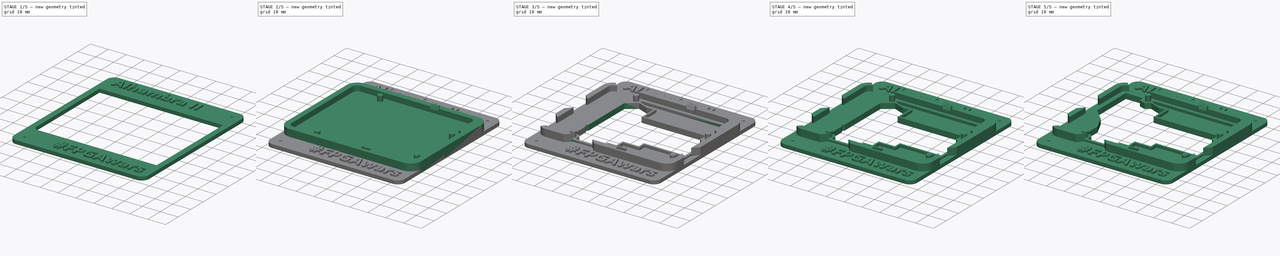
[diagram: build sequence overview — one tinted view per stage of 5, left to right]
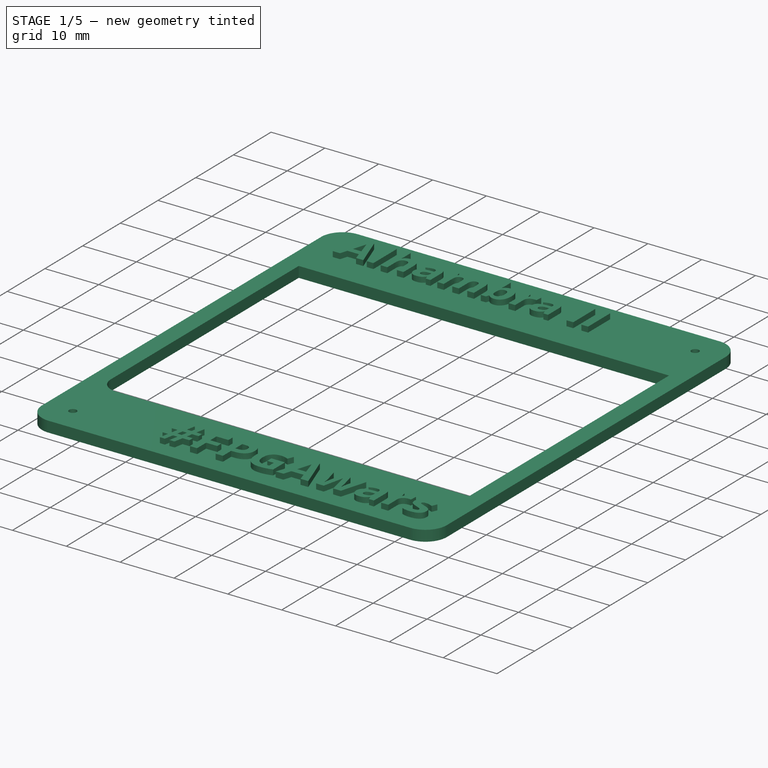
[diagram: stage 1 of 5 — iso view after this stage's code; geometry added in this stage tinted green]
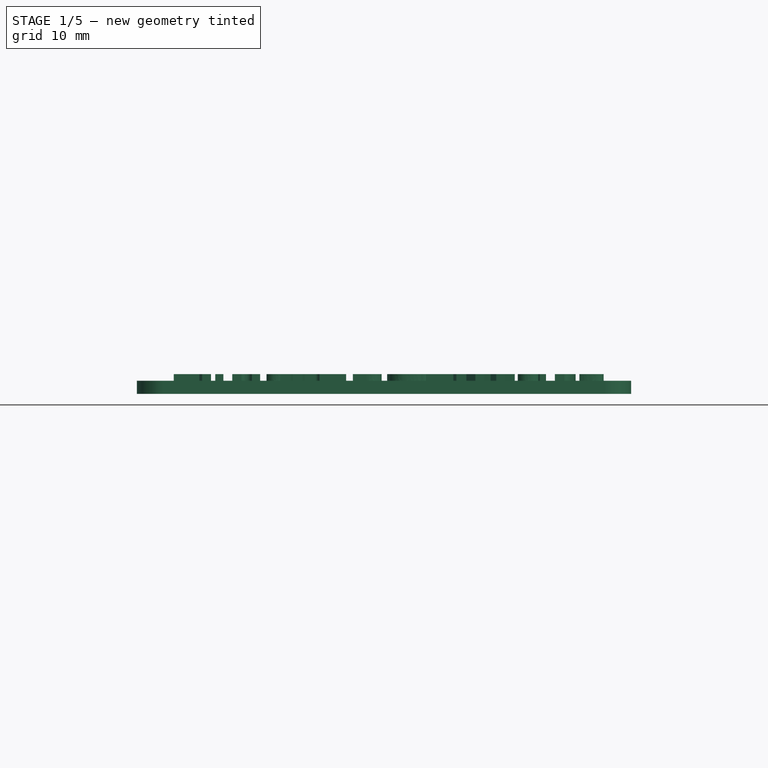
[diagram: stage 1 of 5 — front view after this stage's code; geometry added in this stage tinted green]
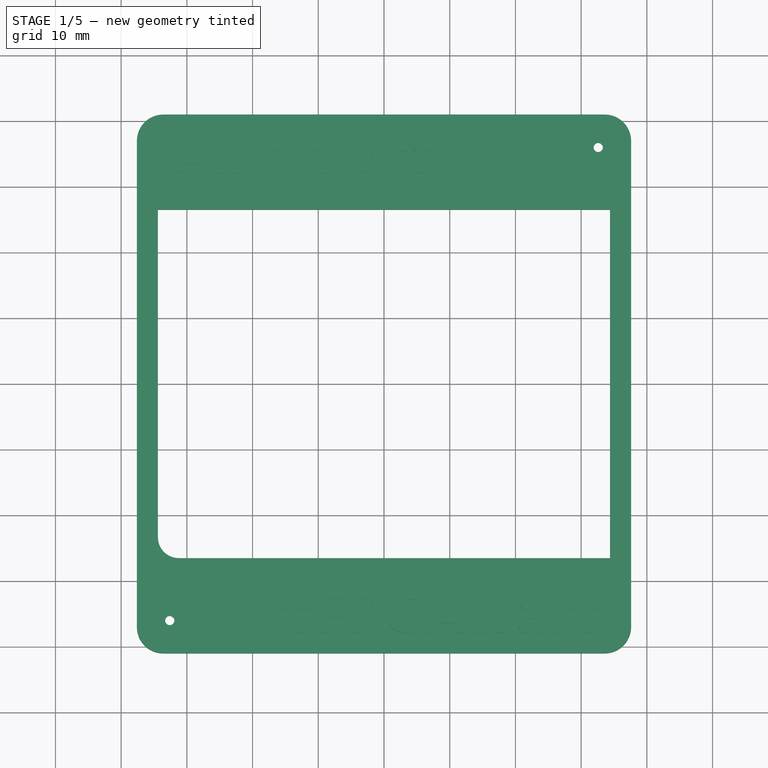
[diagram: stage 1 of 5 — top view after this stage's code; geometry added in this stage tinted green]
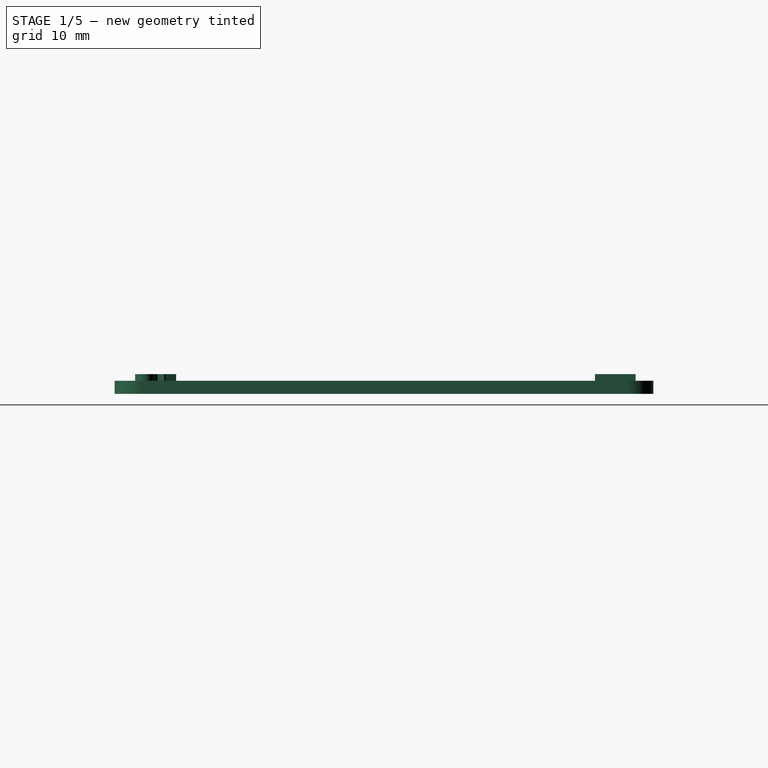
[diagram: stage 1 of 5 — right view after this stage's code; geometry added in this stage tinted green]
FCSTD DOCUMENT  (FreeCAD 0.16R6712 (Git))
Label: Alhambra_II_3D_support
License: All rights reserved
LicenseURL: http://en.wikipedia.org/wiki/All_rights_reserved
objects: Sketcher::SketchObject×12, PartDesign::Pad×6, PartDesign::Pocket×5, Part::Feature×4, Part::Extrusion×4, Part::MultiFuse×4, Part::Part2DObjectPython×2, Part::Cut×1, Part::Mirroring×1
note: 50 computed .brp shape members not serialized (recipe doc carries the construction recipe); baked Part::Feature solids carry a one-line shape summary decoded from their .brp

FEATURE [Part::Part2DObjectPython] ShapeString001  label="FPGAwars-text-string"  # Draft 2D object (typed FeaturePython)
  FontFile = <userpath>/Documents/3_FPGAs/base alhambra/OpenSans/OpenSans-Bold.ttf
  Placement = pos=(-16,-37.8795,-3) rot=(0,0,1;0rad)
  Size = 8
  String = #FPGAwars
  Tracking = 0
FEATURE [Sketcher::SketchObject] Sketch007  label="Icezum-alhambra-text-base-sketch"
  Placement = pos=(0,0,-5) rot=(0,0,1;0rad)
  sketch-geometry (15):
    g0: LineSegment StartX=-33.6 StartY=41 StartZ=0 EndX=33.6 EndY=41 EndZ=0
    g1: LineSegment StartX=37.6 StartY=37 StartZ=0 EndX=37.6 EndY=-37 EndZ=0
    g2: LineSegment StartX=33.6 StartY=-41 StartZ=0 EndX=-33.6 EndY=-41 EndZ=0
    g3: LineSegment StartX=-37.6 StartY=-37 StartZ=0 EndX=-37.6 EndY=37 EndZ=0
    g4: ArcOfCircle CenterX=-33.6 CenterY=37 CenterZ=0 NormalX=0 NormalY=0 NormalZ=1 Radius=4 StartAngle=1.5708 EndAngle=3.14159
    g5: ArcOfCircle CenterX=33.6 CenterY=37 CenterZ=0 NormalX=0 NormalY=0 NormalZ=1 Radius=4 StartAngle=0 EndAngle=1.5708
    g6: ArcOfCircle CenterX=33.6 CenterY=-37 CenterZ=0 NormalX=0 NormalY=0 NormalZ=1 Radius=4 StartAngle=4.71239 EndAngle=6.28319
    g7: ArcOfCircle CenterX=-33.6 CenterY=-37 CenterZ=0 NormalX=0 NormalY=0 NormalZ=1 Radius=4 StartAngle=3.14159 EndAngle=4.71239
    g8: LineSegment StartX=-34.4 StartY=26.5 StartZ=0 EndX=34.4 EndY=26.5 EndZ=0
    g9: LineSegment StartX=34.4 StartY=26.5 StartZ=0 EndX=34.4 EndY=-26.5 EndZ=0
    g10: LineSegment StartX=34.4 StartY=-26.5 StartZ=0 EndX=-31.23 EndY=-26.5 EndZ=0
    g11: LineSegment StartX=-34.4 StartY=-23.33 StartZ=0 EndX=-34.4 EndY=26.5 EndZ=0
    g12: ArcOfCircle CenterX=-31.23 CenterY=-23.33 CenterZ=0 NormalX=0 NormalY=0 NormalZ=1 Radius=3.16996 StartAngle=3.14159 EndAngle=4.71239
    g13: Circle CenterX=-32.6 CenterY=-36 CenterZ=0 NormalX=0 NormalY=0 NormalZ=1 Radius=0.7
    g14: Circle CenterX=32.6 CenterY=36 CenterZ=0 NormalX=0 NormalY=0 NormalZ=1 Radius=0.7
  constraints (37):
    c: Horizontal(g0)
    c: Horizontal(g2)
    c: Vertical(g1)
    c: Vertical(g3)
    c: Tangent(g0,g4) = 1.5708
    c: Tangent(g3,g4) = 1.5708
    c: Tangent(g0,g5) = 1.5708
    c: Tangent(g1,g5) = 1.5708
    c: Tangent(g1,g6) = 1.5708
    c: Tangent(g2,g6) = 1.5708
    c: Tangent(g2,g7) = 1.5708
    c: Tangent(g3,g7) = 1.5708
    c: Equal(g4,g5)
    c: Equal(g5,g6)
    c: Equal(g6,g7)
    c: Radius(g4) = 4
    c: Symmetric(g4,g6,g-1)
    c: DistanceX(g3,g1) = 75.2
    c: DistanceY(g2,g0) = 82
    c: Coincident(g8,g9)
    c: Coincident(g9,g10)
    c: Coincident(g11,g8)
    c: Horizontal(g8)
    c: Horizontal(g10)
    c: Vertical(g9)
    c: Vertical(g11)
    c: Symmetric(g8,g9,g-1)
    c: DistanceY(g8,g3) = 10.5
    c: DistanceX(g3,g8) = 3.2
    c: Tangent(g11,g12) = 1.5708
    c: Tangent(g10,g12) = 1.5708
    c: DistanceY(g2,g13) = 5
    c: DistanceX(g3,g13) = 5
    c: Radius(g13) = 0.7
    c: Radius(g14) = 0.7
    c: DistanceY(g14,g0) = 5
    c: DistanceX(g14,g1) = 5
FEATURE [Part::Extrusion] Extrude001  label="Alhmabra_II-text"
  Base = -> ShapeString
  Dir = (0,0,1)
  Solid = true
FEATURE [Part::Extrusion] Extrude002  label="FPGAwars-text"
  Base = -> ShapeString001
  Dir = (0,0,1)
  Solid = true
FEATURE [Part::Extrusion] Extrude003  label="Base-text"
  Base = -> Sketch007
  Dir = (0,0,2)
  Solid = true
FEATURE [Part::MultiFuse] Fusion002  label="Base-with-text"
  Shapes = -> [Extrude001,Extrude002,Extrude003]
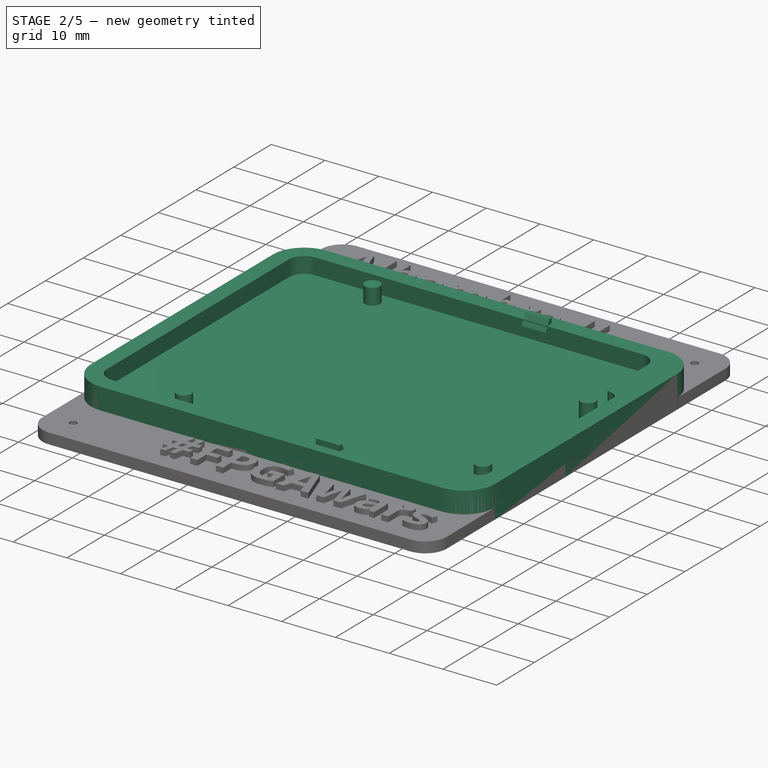
[diagram: stage 2 of 5 — iso view after this stage's code; geometry added in this stage tinted green]
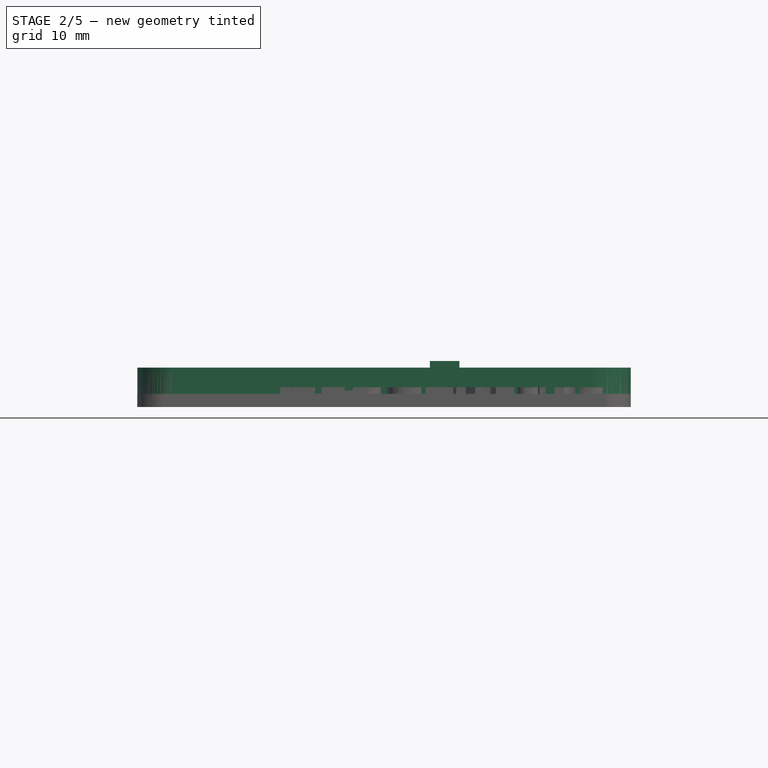
[diagram: stage 2 of 5 — front view after this stage's code; geometry added in this stage tinted green]
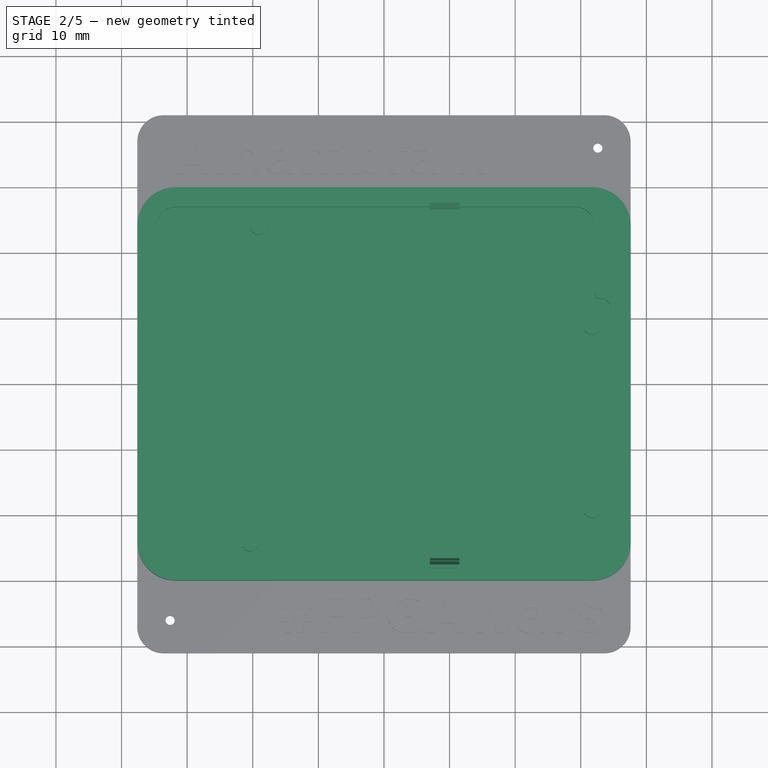
[diagram: stage 2 of 5 — top view after this stage's code; geometry added in this stage tinted green]
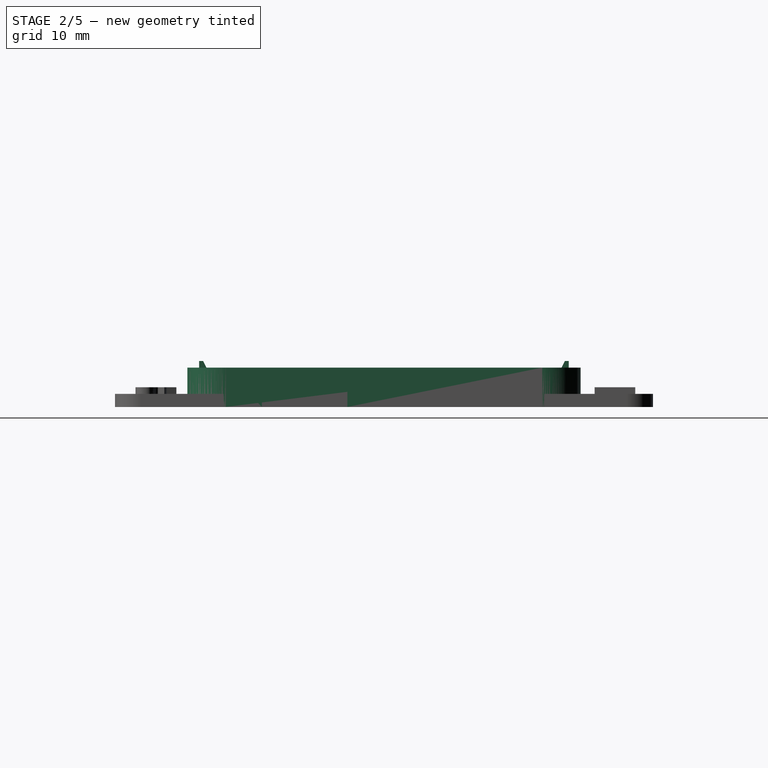
[diagram: stage 2 of 5 — right view after this stage's code; geometry added in this stage tinted green]
FEATURE [Part::Feature] Wire  label="board_contour"
  shape: bbox 68.58 x 53.34 x 2e-07 mm, 0 faces, 0 solids (baked)
FEATURE [Part::Feature] Offset  label="board_contour_offset"
  shape: bbox 69.18 x 53.94 x 2e-07 mm, 0 faces, 0 solids (baked)
FEATURE [Part::Feature] Face
  shape: bbox 69.18 x 53.94 x 2e-07 mm, 1 faces, 0 solids (baked)
FEATURE [Part::Extrusion] Extrude  label="board_base_offset"
  Base = -> Face
  Dir = (0,0,-4)
  Placement = pos=(0,0,2) rot=(0,0,1;0rad)
  Solid = true
FEATURE [Sketcher::SketchObject] Sketch  label="Base-sketch"
  Placement = pos=(0,0,1) rot=(0,0,1;0rad)
  expr: Constraints[26] = 2.84 + 3
  sketch-geometry (23):
    g0: LineSegment StartX=-31.75 StartY=29.97 StartZ=0 EndX=31.77 EndY=29.97 EndZ=0
    g1: LineSegment StartX=37.61 StartY=24.13 StartZ=0 EndX=37.61 EndY=-24.13 EndZ=0
    g2: LineSegment StartX=31.77 StartY=-29.97 StartZ=0 EndX=-31.75 EndY=-29.97 EndZ=0
    g3: LineSegment StartX=-37.59 StartY=-24.13 StartZ=0 EndX=-37.59 EndY=24.13 EndZ=0
    g4: ArcOfCircle CenterX=-31.75 CenterY=24.13 CenterZ=0 NormalX=0 NormalY=0 NormalZ=1 Radius=5.84 StartAngle=1.5708 EndAngle=3.14159
    g5: ArcOfCircle CenterX=31.77 CenterY=-24.13 CenterZ=0 NormalX=0 NormalY=0 NormalZ=1 Radius=5.84 StartAngle=4.71239 EndAngle=6.28319
    g6: ArcOfCircle CenterX=-31.75 CenterY=-24.13 CenterZ=0 NormalX=0 NormalY=0 NormalZ=1 Radius=5.84 StartAngle=3.14159 EndAngle=4.71239
    g7: LineSegment [constr] StartX=-34.59 StartY=24.13 StartZ=0 EndX=-34.59 EndY=-24.13 EndZ=0
    g8: ArcOfCircle [constr] CenterX=-31.75 CenterY=24.13 CenterZ=0 NormalX=0 NormalY=0 NormalZ=1 Radius=2.84 StartAngle=1.5708 EndAngle=3.14159
    g9: LineSegment [constr] StartX=-34.59 StartY=24.13 StartZ=0 EndX=-31.75 EndY=24.13 EndZ=0
    g10: LineSegment [constr] StartX=-31.75 StartY=24.13 StartZ=0 EndX=-31.75 EndY=26.97 EndZ=0
    g11: LineSegment [constr] StartX=-31.75 StartY=-24.13 StartZ=0 EndX=-34.59 EndY=-24.13 EndZ=0
    g12: LineSegment [constr] StartX=34.61 StartY=24.13 StartZ=0 EndX=34.61 EndY=-24.13 EndZ=0
    g13: LineSegment [constr] StartX=-31.75 StartY=26.97 StartZ=0 EndX=31.77 EndY=26.97 EndZ=0
    g14: ArcOfCircle [constr] CenterX=31.77 CenterY=24.13 CenterZ=0 NormalX=0 NormalY=0 NormalZ=1 Radius=2.84 StartAngle=0 EndAngle=1.5708
    g15: ArcOfCircle CenterX=31.77 CenterY=24.13 CenterZ=0 NormalX=0 NormalY=0 NormalZ=1 Radius=5.84 StartAngle=0 EndAngle=1.5708
    g16: LineSegment [constr] StartX=31.77 StartY=24.13 StartZ=0 EndX=34.61 EndY=24.13 EndZ=0
    g17: LineSegment [constr] StartX=31.77 StartY=24.13 StartZ=0 EndX=31.77 EndY=26.97 EndZ=0
    g18: LineSegment [constr] StartX=-31.75 StartY=-24.13 StartZ=0 EndX=-31.75 EndY=-26.97 EndZ=0
    g19: ArcOfCircle [constr] CenterX=-31.75 CenterY=-24.13 CenterZ=0 NormalX=0 NormalY=0 NormalZ=1 Radius=2.84 StartAngle=3.14159 EndAngle=4.71239
    g20: LineSegment [constr] StartX=-31.75 StartY=-26.97 StartZ=0 EndX=31.77 EndY=-26.97 EndZ=0
    g21: LineSegment [constr] StartX=31.77 StartY=-26.97 StartZ=0 EndX=31.77 EndY=-24.13 EndZ=0
    g22: ArcOfCircle [constr] CenterX=31.77 CenterY=-24.13 CenterZ=0 NormalX=0 NormalY=0 NormalZ=1 Radius=2.84 StartAngle=4.71239 EndAngle=6.28319
  constraints (60):
    c: Horizontal(g0)
    c: Horizontal(g2)
    c: Vertical(g1)
    c: Vertical(g3)
    c: Tangent(g0,g4) = 1.5708
    c: Tangent(g3,g4) = 1.5708
    c: Tangent(g1,g5) = 1.5708
    c: Tangent(g2,g5) = 1.5708
    c: Tangent(g2,g6) = 1.5708
    c: Tangent(g3,g6) = 1.5708
    c: DistanceX(g4,g-1) = 31.75  'g'
    c: DistanceY(g-1,g4) = 24.13
    c: Symmetric(g6,g4,g-1)  'Constraint13'
    c: Vertical(g7)
    c: Coincident(g8,g4)
    c: Coincident(g7,g8)
    c: Coincident(g9,g7)
    c: Coincident(g9,g4)
    c: Horizontal(g9)
    c: Radius(g8) = 2.84
    c: Coincident(g10,g4)
    c: Vertical(g10)
    c: Coincident(g8,g10)
    c: Coincident(g11,g6)
    c: Horizontal(g11)
    c: Coincident(g7,g11)
    c: Radius(g4) = 5.84
    c: Vertical(g12)
    c: DistanceX(g7,g12) = 69.2
    c: Horizontal(g13)
    c: Coincident(g13,g8)
    c: Coincident(g14,g13)
    c: Equal(g14,g8)
    c: Coincident(g15,g14)
    c: Coincident(g15,g0)
    c: Coincident(g1,g15)
    c: Coincident(g14,g12)
    c: Coincident(g16,g14)
    c: Coincident(g16,g12)
    c: Horizontal(g16)
    c: PointOnObject(g1,g16)
    c: Coincident(g17,g14)
    c: Coincident(g17,g13)
    c: Vertical(g17)
    c: PointOnObject(g0,g17)
    c: Equal(g15,g5)
    c: PointOnObject(g12,g11)
    c: Coincident(g18,g6)
    c: Vertical(g18)
    c: Coincident(g19,g6)
    c: Coincident(g19,g7)
    c: Coincident(g18,g19)
    c: Coincident(g20,g18)
    c: Horizontal(g20)
    c: Coincident(g21,g20)
    c: Coincident(g21,g5)
    c: Vertical(g21)
    c: Coincident(g22,g5)
    c: Coincident(g22,g20)
    c: Coincident(g22,g12)
FEATURE [PartDesign::Pad] Pad  label="Support_base"
  Length = 6
  Length2 = 100
  Placement = pos=(0,0,1) rot=(0,0,1;0rad)
  Reversed = true
  Sketch = -> Sketch
  Type = 0
FEATURE [Part::Cut] Cut  label="Support-base-2"
  Base = -> Pad
  Tool = -> Extrude
FEATURE [Part::Feature] Pocket004001  label="Final_Without_text001"
  shape: bbox 75.2 x 59.94 x 7 mm, 130 faces (baked)
FEATURE [Part::MultiFuse] Fusion004  label="Final_with_text_Alhambra_II"
  Shapes = -> [Fusion002,Pocket004001]
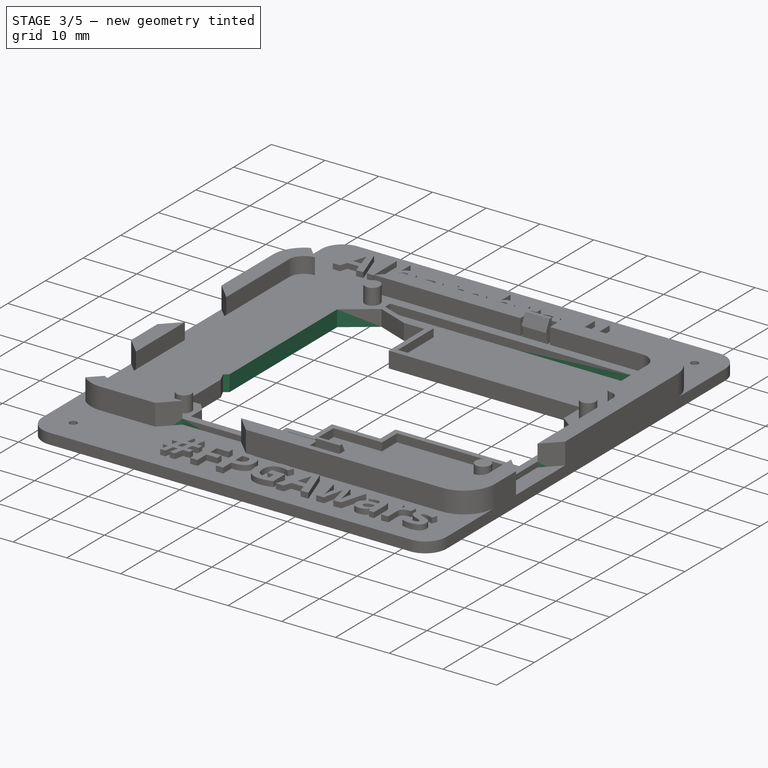
[diagram: stage 3 of 5 — iso view after this stage's code; geometry added in this stage tinted green]
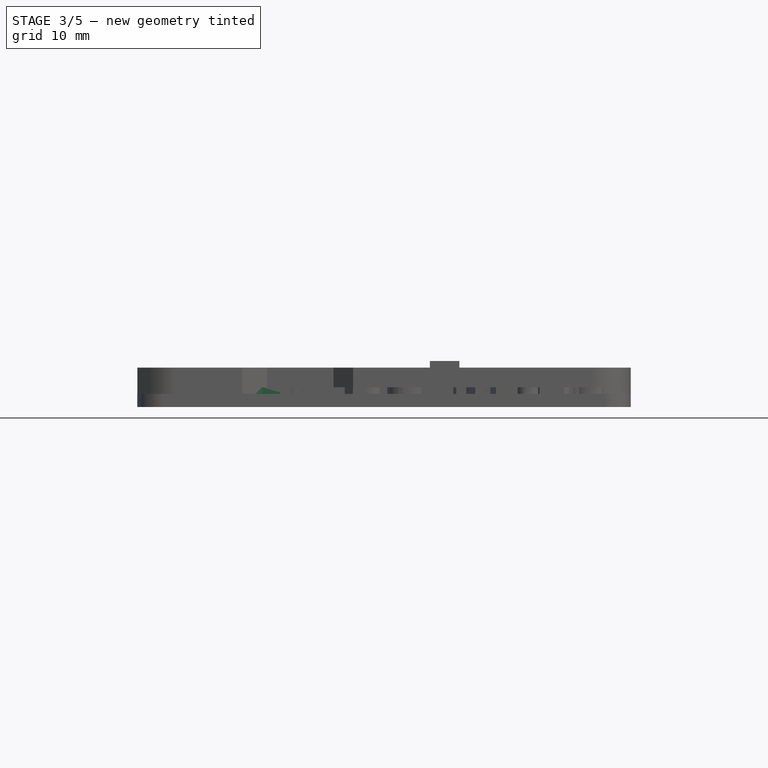
[diagram: stage 3 of 5 — front view after this stage's code; geometry added in this stage tinted green]
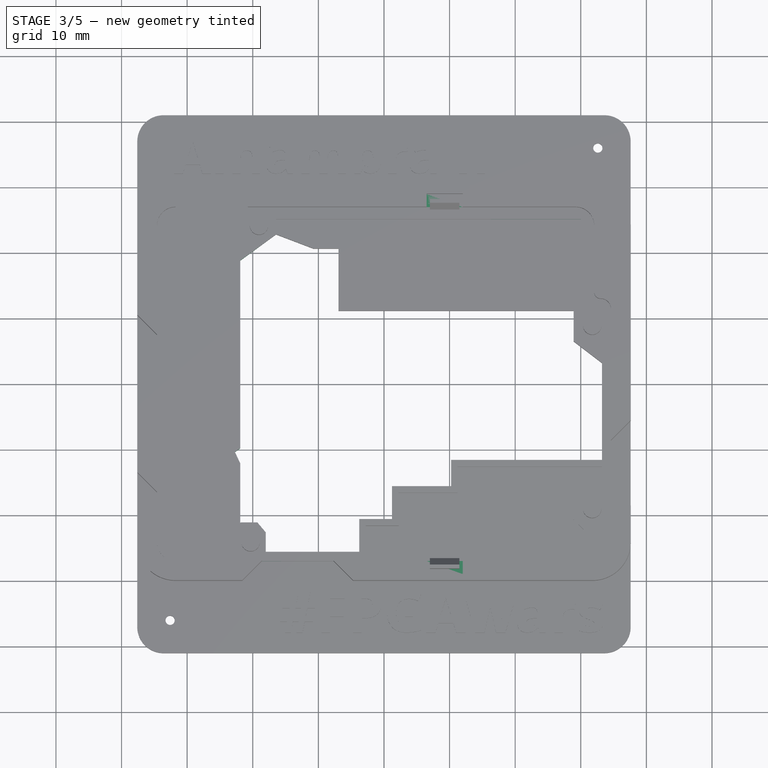
[diagram: stage 3 of 5 — top view after this stage's code; geometry added in this stage tinted green]
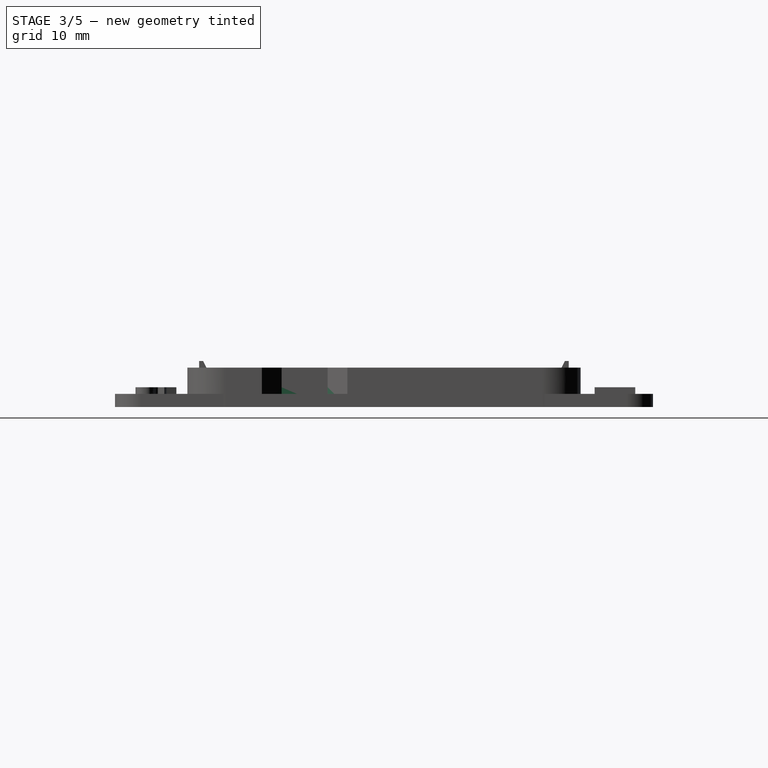
[diagram: stage 3 of 5 — right view after this stage's code; geometry added in this stage tinted green]
FEATURE [Sketcher::SketchObject] Sketch001  label="Bottom-cutout"
  Placement = pos=(0,0,-2) rot=(0,0,1;0rad)
  Support = -> Cut [Face24]
  sketch-geometry (23):
    g0: LineSegment StartX=-16.4489 StartY=25.1687 StartZ=0 EndX=30.0737 EndY=25.1687 EndZ=0
    g1: LineSegment StartX=30.0737 StartY=25.1687 StartZ=0 EndX=30.0737 EndY=13.1477 EndZ=0
    g2: LineSegment StartX=-16.4489 StartY=22.8251 StartZ=0 EndX=-16.4489 EndY=25.1687 EndZ=0
    g3: LineSegment StartX=30.0737 StartY=13.1477 StartZ=0 EndX=28.9006 EndY=12.1902 EndZ=0
    g4: LineSegment StartX=28.9006 StartY=12.1902 StartZ=0 EndX=28.9006 EndY=6.52393 EndZ=0
    g5: LineSegment StartX=33.2295 StartY=3.21963 StartZ=0 EndX=33.2295 EndY=-13.9555 EndZ=0
    g6: LineSegment StartX=33.2295 StartY=-13.9555 StartZ=0 EndX=28.9515 EndY=-18.044 EndZ=0
    g7: LineSegment StartX=28.9515 StartY=-18.044 StartZ=0 EndX=28.9515 EndY=-20.6899 EndZ=0
    g8: LineSegment StartX=28.9515 StartY=-20.6899 StartZ=0 EndX=30.408 EndY=-22.1739 EndZ=0
    g9: LineSegment StartX=30.408 StartY=-22.1739 StartZ=0 EndX=30.408 EndY=-25.5654 EndZ=0
    g10: LineSegment StartX=30.408 StartY=-25.5654 StartZ=0 EndX=-18.0282 EndY=-25.5654 EndZ=0
    g11: LineSegment StartX=-18.0282 StartY=-25.5654 StartZ=0 EndX=-18.0282 EndY=-22.5989 EndZ=0
    g12: LineSegment StartX=-21.9084 StartY=-9.76614 StartZ=0 EndX=-21.9084 EndY=18.8396 EndZ=0
    g13: LineSegment StartX=-21.9084 StartY=18.8396 StartZ=0 EndX=-16.4489 EndY=22.8251 EndZ=0
    g14: LineSegment StartX=28.9006 StartY=6.52393 StartZ=0 EndX=33.2295 EndY=3.21963 EndZ=0
    g15: LineSegment StartX=-18.0282 StartY=-22.5989 StartZ=0 EndX=-19.2968 EndY=-21.0867 EndZ=0
    g16: LineSegment StartX=-19.2968 StartY=-21.0867 StartZ=0 EndX=-21.8189 EndY=-21.0867 EndZ=0
    g17: LineSegment StartX=-21.8189 StartY=-21.0867 StartZ=0 EndX=-23.0035 EndY=-22.3859 EndZ=0
    g18: LineSegment StartX=-23.0035 StartY=-22.3859 StartZ=0 EndX=-23.0035 EndY=-25.4429 EndZ=0
    g19: LineSegment StartX=-23.0035 StartY=-25.4429 StartZ=0 EndX=-28.2004 EndY=-25.4429 EndZ=0
    g20: LineSegment StartX=-28.2004 StartY=-25.4429 StartZ=0 EndX=-31.0297 EndY=-19.8639 EndZ=0
    g21: LineSegment StartX=-31.0297 StartY=-19.8639 StartZ=0 EndX=-31.0297 EndY=-16.3112 EndZ=0
    g22: LineSegment StartX=-31.0297 StartY=-16.3112 StartZ=0 EndX=-21.9084 EndY=-9.76614 EndZ=0
  constraints (37):
    c: Horizontal(g0)
    c: Coincident(g0,g1)
    c: Vertical(g1)
    c: Coincident(g2,g0)
    c: Vertical(g2)
    c: Coincident(g1,g3)
    c: Coincident(g3,g4)
    c: Vertical(g4)
    c: Vertical(g5)
    c: Coincident(g6,g7)
    c: Vertical(g7)
    c: Coincident(g7,g8)
    c: Coincident(g8,g9)
    c: Vertical(g9)
    c: Coincident(g9,g10)
    c: Horizontal(g10)
    c: Coincident(g10,g11)
    c: Vertical(g11)
    c: Vertical(g12)
    c: Coincident(g13,g12)
    c: Coincident(g13,g2)
    c: Coincident(g5,g6)
    c: Coincident(g14,g4)
    c: Coincident(g14,g5)
    c: Coincident(g11,g15)
    c: Coincident(g15,g16)
    c: Horizontal(g16)
    c: Coincident(g16,g17)
    c: Coincident(g17,g18)
    c: Vertical(g18)
    c: Coincident(g18,g19)
    c: Horizontal(g19)
    c: Coincident(g19,g20)
    c: Coincident(g20,g21)
    c: Vertical(g21)
    c: Coincident(g21,g22)
    c: Coincident(g22,g12)
FEATURE [PartDesign::Pocket] Pocket  label="Support-base-3"
  Length = 2
  Sketch = -> Sketch001
  Type = 1
FEATURE [Sketcher::SketchObject] Sketch002  label="Drills-sketch"
  Placement = pos=(0,0,-2) rot=(0,0,1;0rad)
  Support = -> Pocket [Face47]
  sketch-geometry (5):
    g0: Circle CenterX=-19.05 CenterY=24.13 CenterZ=0 NormalX=0 NormalY=0 NormalZ=1 Radius=1.4
    g1: Circle CenterX=31.75 CenterY=8.89 CenterZ=0 NormalX=0 NormalY=0 NormalZ=1 Radius=1.4
    g2: Circle CenterX=31.75 CenterY=-19.05 CenterZ=0 NormalX=0 NormalY=0 NormalZ=1 Radius=1.4
    g3: LineSegment [constr] StartX=31.75 StartY=8.89 StartZ=0 EndX=31.75 EndY=-19.05 EndZ=0
    g4: Circle CenterX=-20.32 CenterY=-24.13 CenterZ=0 NormalX=0 NormalY=0 NormalZ=1 Radius=1.4
  constraints (14):
    c: DistanceX(g0,g-1) = 19.05
    c: DistanceY(g-1,g0) = 24.13
    c: Radius(g0) = 1.4
    c: Equal(g0,g1)
    c: DistanceX(g0,g1) = 50.8
    c: DistanceY(g1,g0) = 15.24
    c: Coincident(g3,g1)
    c: Vertical(g3)
    c: Coincident(g2,g3)
    c: Equal(g4,g2)
    c: Equal(g2,g1)
    c: DistanceY(g3,g3) = 27.94
    c: DistanceX(g4,g2) = 52.07
    c: DistanceY(g4,g2) = 5.08
FEATURE [PartDesign::Pad] Pad001  label="Support-base-4"
  Length = 3
  Length2 = 100
  Sketch = -> Sketch002
  Type = 0
FEATURE [Sketcher::SketchObject] Sketch003
  ExternalGeometry = -> [Pad001]
  Placement = pos=(0,0,1) rot=(0,0,1;0rad)
  Support = -> Pad001 [Face4]
  sketch-geometry (29):
    g0: LineSegment StartX=-18.6 StartY=-26.97 StartZ=0 EndX=-21.6 EndY=-29.97 EndZ=0
    g1: LineSegment StartX=-18.6 StartY=-26.97 StartZ=0 EndX=-7.7 EndY=-26.97 EndZ=0
    g2: LineSegment StartX=-21.6 StartY=-29.97 StartZ=0 EndX=-4.7 EndY=-29.97 EndZ=0
    g3: LineSegment StartX=-7.7 StartY=-26.97 StartZ=0 EndX=-4.7 EndY=-29.97 EndZ=0
    g4: LineSegment [constr] StartX=-13.15 StartY=-26.97 StartZ=0 EndX=-13.15 EndY=-29.97 EndZ=0
    g5: LineSegment StartX=-34.59 StartY=7.5 StartZ=0 EndX=-37.59 EndY=10.5 EndZ=0
    g6: LineSegment StartX=-34.59 StartY=-3.5 StartZ=0 EndX=-37.59 EndY=-6.5 EndZ=0
    g7: LineSegment StartX=-34.59 StartY=7.5 StartZ=0 EndX=-34.59 EndY=-3.5 EndZ=0
    g8: LineSegment StartX=-37.59 StartY=10.5 StartZ=0 EndX=-37.59 EndY=-6.5 EndZ=0
    g9: LineSegment [constr] StartX=-37.59 StartY=2 StartZ=0 EndX=-34.59 EndY=2 EndZ=0
    g10: LineSegment StartX=-34.75 StartY=29.97 StartZ=0 EndX=-31.75 EndY=26.97 EndZ=0
    g11: LineSegment StartX=-31.75 StartY=26.97 StartZ=0 EndX=-20.75 EndY=26.97 EndZ=0
    g12: LineSegment StartX=-20.75 StartY=26.97 StartZ=0 EndX=-17.75 EndY=29.97 EndZ=0
    g13: LineSegment StartX=-17.75 StartY=29.97 StartZ=0 EndX=-34.75 EndY=29.97 EndZ=0
    g14: LineSegment [constr] StartX=-26.25 StartY=29.97 StartZ=0 EndX=-26.25 EndY=26.97 EndZ=0
    g15: LineSegment StartX=37.61 StartY=-5.58 StartZ=0 EndX=34.59 EndY=-8.6 EndZ=0
    g16: LineSegment StartX=34.59 StartY=-8.6 StartZ=0 EndX=34.59 EndY=-15.6 EndZ=0
    g17: LineSegment StartX=34.59 StartY=-15.6 StartZ=0 EndX=37.61 EndY=-18.62 EndZ=0
    g18: LineSegment StartX=37.61 StartY=-18.62 StartZ=0 EndX=37.61 EndY=-5.58 EndZ=0
    g19: LineSegment [constr] StartX=34.59 StartY=-12.1 StartZ=0 EndX=37.61 EndY=-12.1 EndZ=0
    g20: LineSegment [constr] StartX=-37.59 StartY=-22 StartZ=0 EndX=-34.59 EndY=-22 EndZ=0
    g21: LineSegment StartX=-37.59 StartY=-13.5 StartZ=0 EndX=-34.59 EndY=-16.5 EndZ=0
    g22: LineSegment StartX=-35.606 StartY=-28.516 StartZ=0 EndX=-33.4756 EndY=-26.3856 EndZ=0
    g23: LineSegment [constr] StartX=-34.59 StartY=-24.13 StartZ=0 EndX=-34.59 EndY=-27.5 EndZ=0
    g24: LineSegment StartX=-34.59 StartY=-16.5 StartZ=0 EndX=-34.59 EndY=-22 EndZ=0
    g25: LineSegment StartX=-37.59 StartY=-13.5 StartZ=0 EndX=-37.59 EndY=-24.13 EndZ=0
    g26: ArcOfCircle CenterX=-31.75 CenterY=-24.13 CenterZ=0 NormalX=0 NormalY=0 NormalZ=1 Radius=2.84 StartAngle=3.14159 EndAngle=4.05934
    g27: ArcOfCircle CenterX=-31.7877 CenterY=-24.1471 CenterZ=0 NormalX=0 NormalY=0 NormalZ=1 Radius=5.80232 StartAngle=3.13865 EndAngle=3.99415
    g28: LineSegment StartX=-34.59 StartY=-22 StartZ=0 EndX=-34.59 EndY=-24.13 EndZ=0
  constraints (85):
    c: PointOnObject(g0,g-3)
    c: PointOnObject(g0,g-4)
    c: Horizontal(g1)
    c: Coincident(g1,g0)
    c: Coincident(g1,g3)
    c: PointOnObject(g3,g-4)
    c: Coincident(g2,g0)
    c: Coincident(g2,g3)
    c: DistanceX(g1,g-1) = 7.7
    c: DistanceX(g0,g1) = 10.9
    c: PointOnObject(g4,g-3)
    c: PointOnObject(g4,g-4)
    c: Symmetric(g0,g1,g4)
    c: Symmetric(g0,g2,g4)
    c: Angle(g3,g-3) = 0.785398
    c: PointOnObject(g5,g-5)
    c: PointOnObject(g5,g-6)
    c: PointOnObject(g6,g-5)
    c: PointOnObject(g6,g-6)
    c: Coincident(g7,g5)
    c: Coincident(g7,g6)
    c: Coincident(g8,g5)
    c: Coincident(g8,g6)
    c: DistanceY(g6,g5) = 11
    c: PointOnObject(g9,g-6)
    c: PointOnObject(g9,g-5)
    c: Symmetric(g5,g6,g9)
    c: Symmetric(g5,g6,g9)
    c: DistanceY(g6,g-1) = 3.5
    c: Angle(g-5,g5) = 0.785398
    c: Coincident(g10,g11)
    c: Coincident(g11,g12)
    c: Coincident(g12,g13)
    c: Coincident(g13,g10)
    c: Coincident(g10,g-7)
    c: PointOnObject(g11,g-7)
    c: PointOnObject(g12,g-8)
    c: Horizontal(g13)
    c: DistanceX(g10,g11) = 11
    c: PointOnObject(g14,g-7)
    c: Symmetric(g10,g11,g14)
    c: Symmetric(g10,g12,g14)
    c: PointOnObject(g14,g-8)
    c: Angle(g-7,g12) = 0.785398
    c: Coincident(g15,g16)
    c: Coincident(g16,g17)
    c: Coincident(g17,g18)
    c: Coincident(g18,g15)
    c: PointOnObject(g16,g-9)
    c: PointOnObject(g15,g-9)
    c: DistanceY(g16,g15) = 7
    c: PointOnObject(g15,g-10)
    c: PointOnObject(g17,g-10)
    c: PointOnObject(g19,g-9)
    c: PointOnObject(g19,g-10)
    c: Symmetric(g15,g16,g19)
    c: Symmetric(g15,g17,g19)
    c: Angle(g15,g-9) = 0.785398
    c: DistanceY(g15,g-1) = 8.6
    c: PointOnObject(g20,g-6)
    c: PointOnObject(g20,g-5)
    c: Horizontal(g20)
    c: DistanceY(g20,g9) = 24
    c: PointOnObject(g21,g-6)
    c: PointOnObject(g21,g-5)
    c: PointOnObject(g22,g-12)
    c: PointOnObject(g22,g-11)
    c: Coincident(g23,g-11)
    c: Vertical(g23)
    c: PointOnObject(g23,g22)
    c: DistanceY(g20,g21) = 5.5
    c: Angle(g21) = -0.785398
    c: Angle(g22) = 0.785398
    c: DistanceY(g23,g20) = 5.5
    c: Coincident(g24,g21)
    c: Coincident(g24,g20)
    c: Coincident(g25,g21)
    c: Coincident(g25,g-12)
    c: Coincident(g26,g-12)
    c: Coincident(g26,g23)
    c: Coincident(g26,g22)
    c: Coincident(g27,g25)
    c: Coincident(g27,g22)
    c: Coincident(g28,g20)
    c: Coincident(g28,g23)
FEATURE [PartDesign::Pocket] Pocket001  label="Support-base-5"
  Length = 5
  Sketch = -> Sketch003
  Type = 1
FEATURE [Sketcher::SketchObject] Sketch008
  ExternalGeometry = -> [Pocket001]
  Placement = pos=(0,0,1) rot=(0,0,1;0rad)
  Support = -> Pocket001 [Face58]
  sketch-geometry (4):
    g0: LineSegment StartX=6.5 StartY=28.97 StartZ=0 EndX=12 EndY=28.97 EndZ=0
    g1: LineSegment StartX=12 StartY=28.97 StartZ=0 EndX=12 EndY=26.97 EndZ=0
    g2: LineSegment StartX=12 StartY=26.97 StartZ=0 EndX=6.5 EndY=26.97 EndZ=0
    g3: LineSegment StartX=6.5 StartY=26.97 StartZ=0 EndX=6.5 EndY=28.97 EndZ=0
  constraints (12):
    c: Coincident(g0,g1)
    c: Coincident(g1,g2)
    c: Coincident(g2,g3)
    c: Coincident(g3,g0)
    c: Horizontal(g0)
    c: Horizontal(g2)
    c: Vertical(g1)
    c: Vertical(g3)
    c: PointOnObject(g1,g-4)
    c: DistanceY(g0,g-3) = 1
    c: DistanceX(g0) = 6.5
    c: Distance(g0) = 5.5
FEATURE [PartDesign::Pocket] Pocket002
  Length = 3
  Sketch = -> Sketch008
  Type = 0
FEATURE [Sketcher::SketchObject] Sketch009
  ExternalGeometry = -> [Pocket002]
  Placement = pos=(0,0,1) rot=(0,0,1;0rad)
  Support = -> Pocket002 [Face60]
  sketch-geometry (4):
    g0: LineSegment StartX=6.5 StartY=-26.97 StartZ=0 EndX=12 EndY=-26.97 EndZ=0
    g1: LineSegment StartX=12 StartY=-26.97 StartZ=0 EndX=12 EndY=-28.97 EndZ=0
    g2: LineSegment StartX=12 StartY=-28.97 StartZ=0 EndX=6.5 EndY=-28.97 EndZ=0
    g3: LineSegment StartX=6.5 StartY=-28.97 StartZ=0 EndX=6.5 EndY=-26.97 EndZ=0
  constraints (12):
    c: Coincident(g0,g1)
    c: Coincident(g1,g2)
    c: Coincident(g2,g3)
    c: Coincident(g3,g0)
    c: Horizontal(g0)
    c: Horizontal(g2)
    c: Vertical(g1)
    c: Vertical(g3)
    c: PointOnObject(g0,g-3)
    c: DistanceY(g-4,g1) = 1
    c: DistanceX(g2) = 6.5
    c: Distance(g2) = 5.5
FEATURE [PartDesign::Pocket] Pocket003
  Length = 3
  Sketch = -> Sketch009
  Type = 0
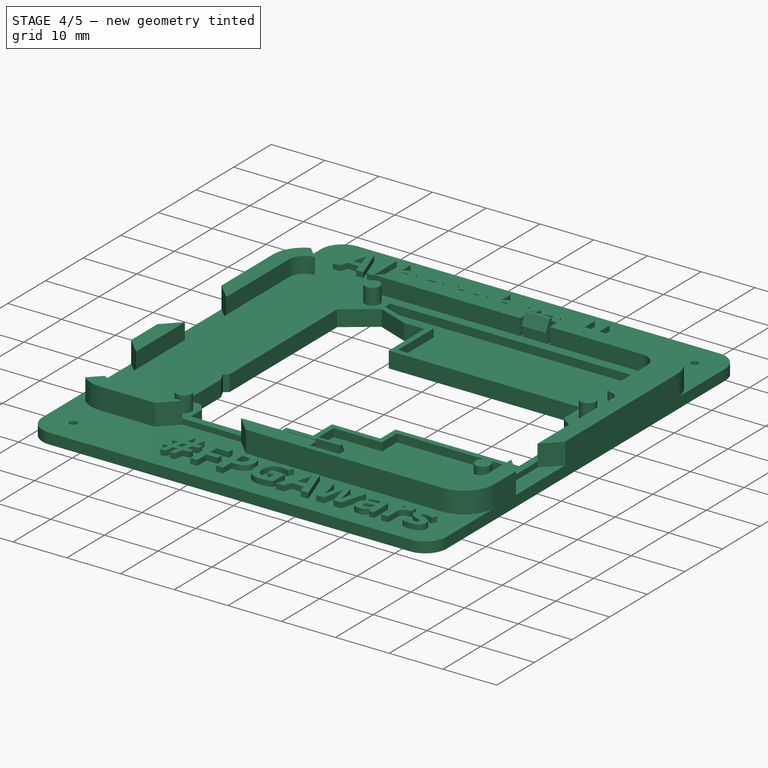
[diagram: stage 4 of 5 — iso view after this stage's code; geometry added in this stage tinted green]
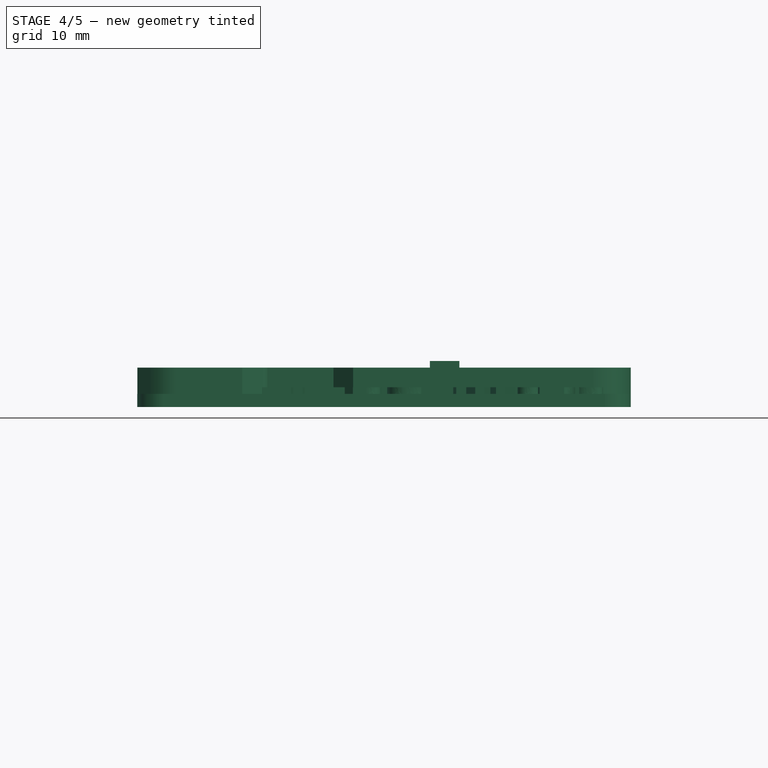
[diagram: stage 4 of 5 — front view after this stage's code; geometry added in this stage tinted green]
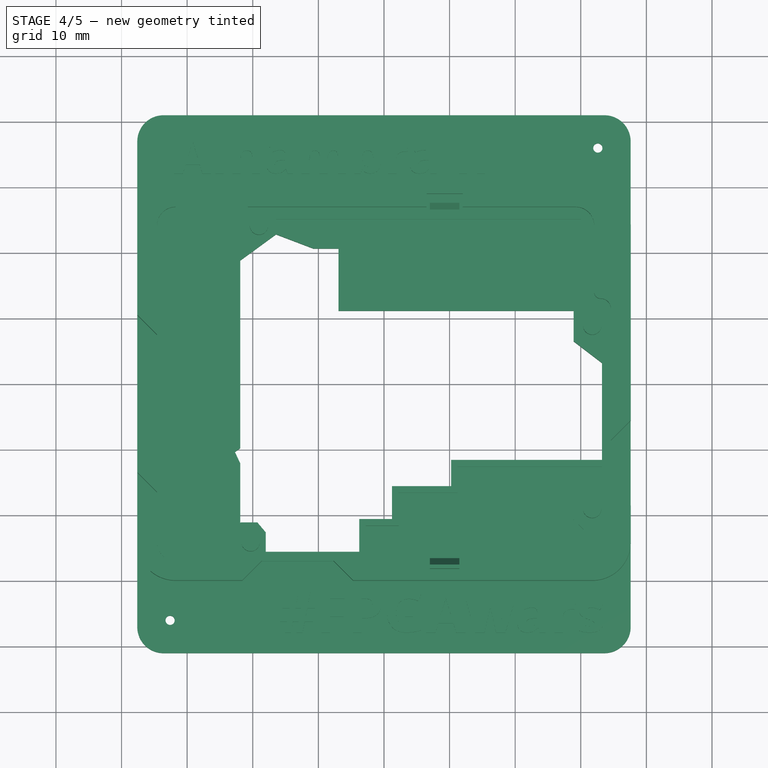
[diagram: stage 4 of 5 — top view after this stage's code; geometry added in this stage tinted green]
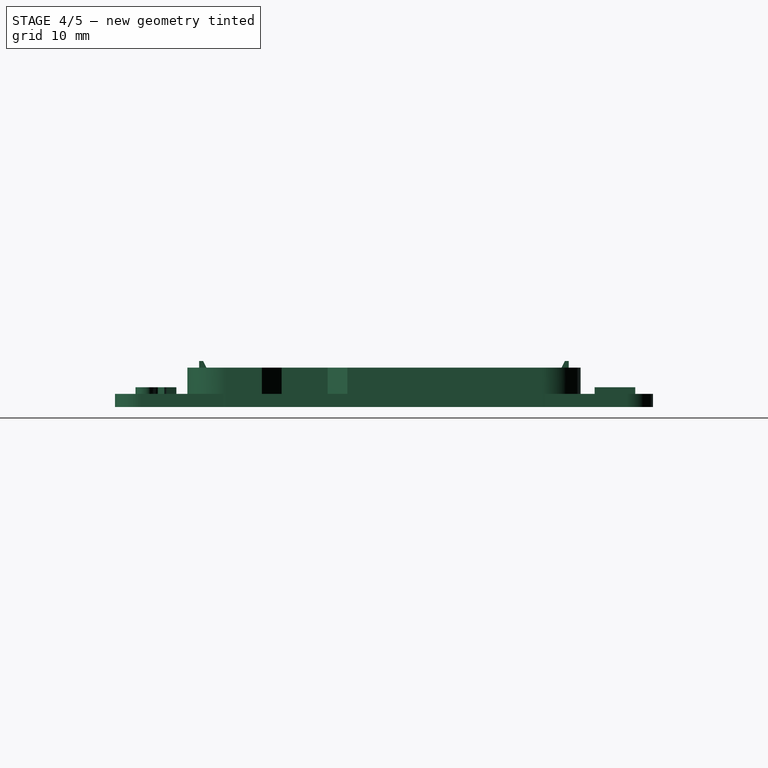
[diagram: stage 4 of 5 — right view after this stage's code; geometry added in this stage tinted green]
FEATURE [Sketcher::SketchObject] Sketch005
  Placement = pos=(7,0,0) rot=(0.57735,0.57735,0.57735;2.0944rad)
  sketch-geometry (7):
    g0: LineSegment StartX=28.17 StartY=0 StartZ=0 EndX=28.17 EndY=-2 EndZ=0
    g1: LineSegment StartX=28.17 StartY=-2 StartZ=0 EndX=26.97 EndY=-2 EndZ=0
    g2: LineSegment StartX=26.97 StartY=-2 StartZ=0 EndX=26.97 EndY=0 EndZ=0
    g3: LineSegment StartX=26.97 StartY=0 StartZ=0 EndX=26.57 EndY=0 EndZ=0
    g4: LineSegment StartX=26.57 StartY=0 StartZ=0 EndX=27.57 EndY=2 EndZ=0
    g5: LineSegment StartX=27.57 StartY=2 StartZ=0 EndX=28.17 EndY=2 EndZ=0
    g6: LineSegment StartX=28.17 StartY=2 StartZ=0 EndX=28.17 EndY=0 EndZ=0
  constraints (21):
    c: Coincident(g0,g1)
    c: Coincident(g1,g2)
    c: Horizontal(g1)
    c: Vertical(g0)
    c: Vertical(g2)
    c: PointOnObject(g2,g-1)
    c: Coincident(g2,g3)
    c: PointOnObject(g3,g-1)
    c: Coincident(g3,g4)
    c: Coincident(g4,g5)
    c: Horizontal(g5)
    c: Coincident(g5,g6)
    c: Coincident(g6,g0)
    c: Vertical(g6)
    c: DistanceX(g-1,g1) = 26.97
    c: DistanceY(g0,g0) = 2
    c: DistanceX(g3,g3) = 0.4
    c: PointOnObject(g0,g-1)
    c: DistanceY(g6,g6) = 2
    c: DistanceX(g1,g1) = 1.2
    c: DistanceX(g5,g5) = 0.6
FEATURE [PartDesign::Pad] Pad002  label="lid"
  Length = 4.5
  Length2 = 100
  Placement = pos=(7,0,0) rot=(0.57735,0.57735,0.57735;2.0944rad)
  Sketch = -> Sketch005
  Type = 0
FEATURE [Part::Part2DObjectPython] ShapeString  label="Alhambra_II-text-string"  # Draft 2D object (typed FeaturePython)
  FontFile = <userpath>/Documents/3_FPGAs/base alhambra/OpenSans/OpenSans-Bold.ttf
  Placement = pos=(-32,32.099,-3) rot=(0,0,1;0rad)
  Size = 7.5
  String = Alhambra II
  Tracking = 0
FEATURE [Part::Mirroring] Part__Mirroring  label="lid (Mirror #1)"
  Base = (0,0,0)
  Normal = (0,1,0)
  Source = -> Pad002
FEATURE [Part::MultiFuse] Fusion  label="lids"
  Shapes = -> [Part__Mirroring,Pad002]
FEATURE [Part::MultiFuse] Fusion003  label="Support-base-6"
  Shapes = -> [Pocket003,Fusion]
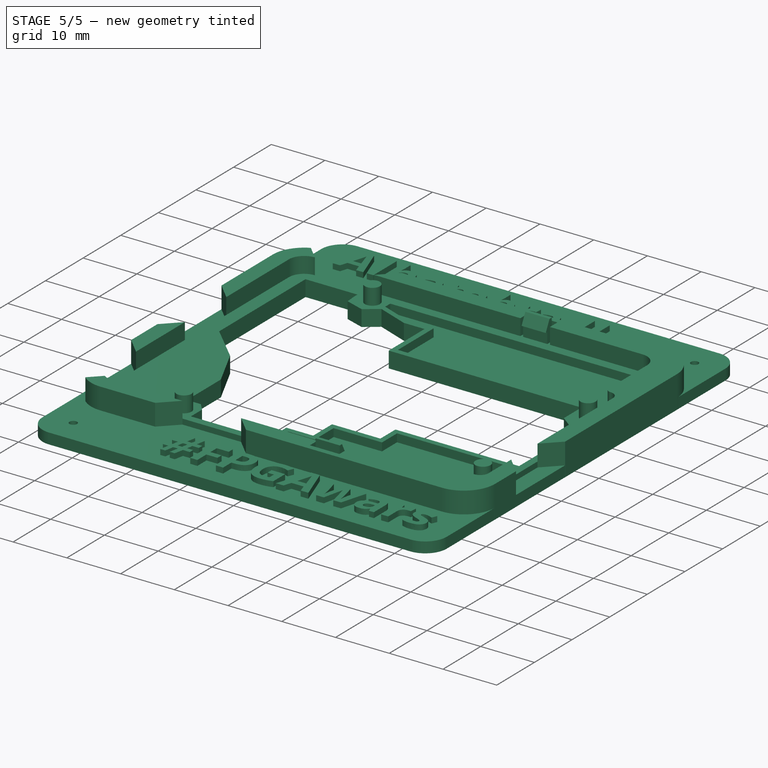
[diagram: stage 5 of 5 — iso view after this stage's code; geometry added in this stage tinted green]
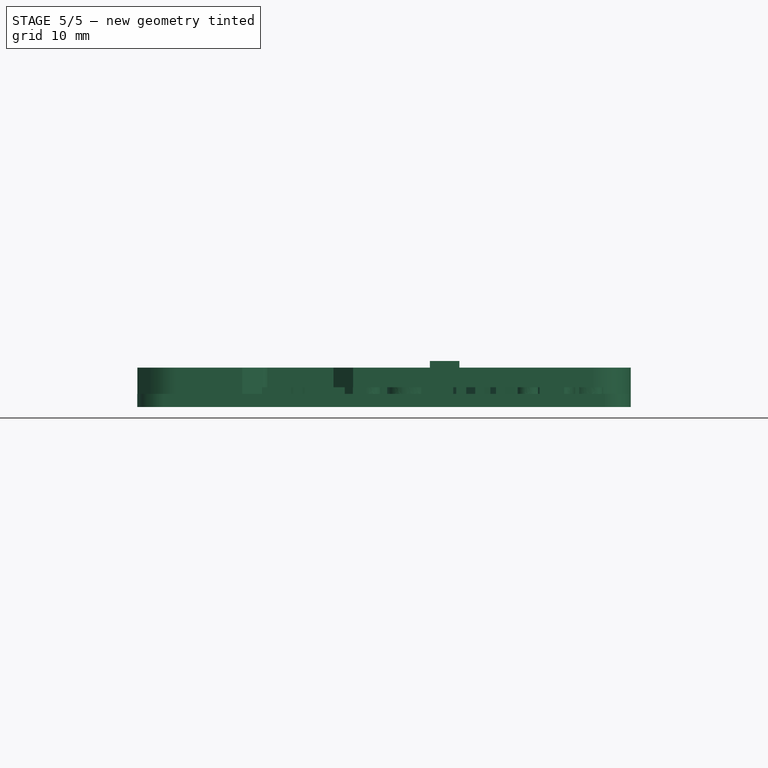
[diagram: stage 5 of 5 — front view after this stage's code; geometry added in this stage tinted green]
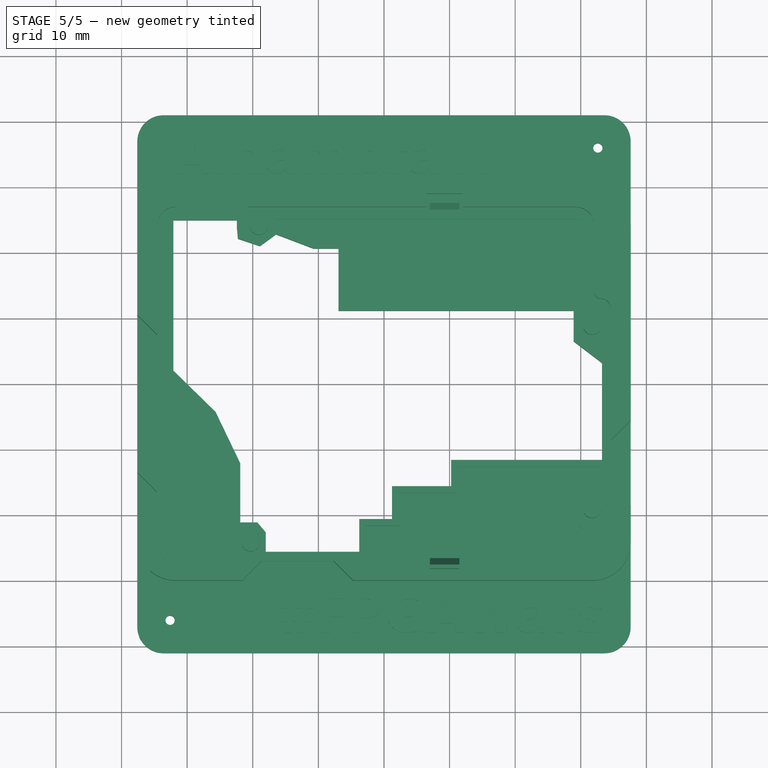
[diagram: stage 5 of 5 — top view after this stage's code; geometry added in this stage tinted green]
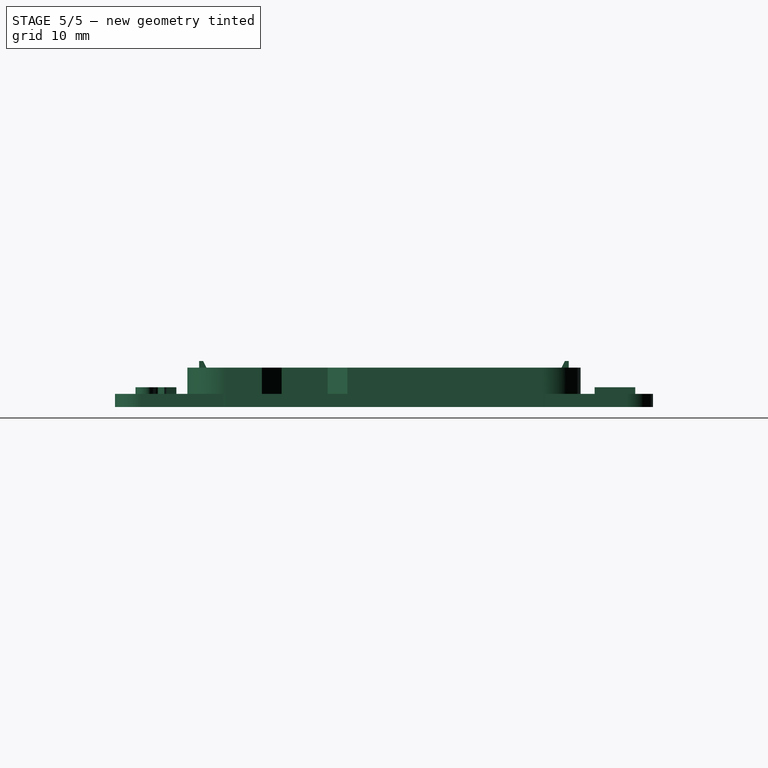
[diagram: stage 5 of 5 — right view after this stage's code; geometry added in this stage tinted green]
FEATURE [Sketcher::SketchObject] Sketch010
  ExternalGeometry = -> [Fusion003]
  Placement = pos=(0,0,-5) rot=(1,0,0;3.14159rad)
  Support = -> Fusion003 [Face4]
  sketch-geometry (15):
    g0: LineSegment StartX=-3.77054 StartY=25.5654 StartZ=0 EndX=-3.77054 EndY=20.5654 EndZ=0
    g1: LineSegment StartX=-3.77054 StartY=20.5654 StartZ=0 EndX=1.22947 EndY=20.5654 EndZ=0
    g2: LineSegment StartX=1.22947 StartY=20.5654 StartZ=0 EndX=1.22947 EndY=15.5654 EndZ=0
    g3: LineSegment StartX=1.22947 StartY=15.5654 StartZ=0 EndX=10.2295 EndY=15.5654 EndZ=0
    g4: LineSegment StartX=10.2295 StartY=15.5654 StartZ=0 EndX=10.2295 EndY=11.5654 EndZ=0
    g5: LineSegment StartX=10.2295 StartY=11.5654 StartZ=0 EndX=33.2295 EndY=11.5654 EndZ=0
    g6: LineSegment StartX=-3.77054 StartY=25.5654 StartZ=0 EndX=33.2295 EndY=25.5654 EndZ=0
    g7: LineSegment StartX=33.2295 StartY=25.5654 StartZ=0 EndX=33.2295 EndY=11.5654 EndZ=0
    g8: LineSegment StartX=30.0737 StartY=-11.1687 StartZ=0 EndX=-6.92635 EndY=-11.1687 EndZ=0
    g9: LineSegment StartX=-6.92635 StartY=-11.1687 StartZ=0 EndX=-6.92635 EndY=-20.6687 EndZ=0
    g10: LineSegment StartX=-6.92635 StartY=-20.6687 StartZ=0 EndX=-10.7713 EndY=-20.6687 EndZ=0
    g11: LineSegment StartX=-16.4489 StartY=-25.1687 StartZ=0 EndX=30.0737 EndY=-25.1687 EndZ=0
    g12: LineSegment StartX=30.0737 StartY=-25.1687 StartZ=0 EndX=30.0737 EndY=-11.1687 EndZ=0
    g13: LineSegment StartX=-10.7713 StartY=-20.6687 StartZ=0 EndX=-16.4489 EndY=-22.8251 EndZ=0
    g14: LineSegment StartX=-16.4489 StartY=-22.8251 StartZ=0 EndX=-16.4489 EndY=-25.1687 EndZ=0
  constraints (42):
    c: PointOnObject(g0,g-3)
    c: Vertical(g0)
    c: Coincident(g0,g1)
    c: Horizontal(g1)
    c: Coincident(g1,g2)
    c: Vertical(g2)
    c: Coincident(g2,g3)
    c: Horizontal(g3)
    c: Coincident(g3,g4)
    c: Vertical(g4)
    c: Coincident(g4,g5)
    c: PointOnObject(g5,g-5)
    c: Horizontal(g5)
    c: Coincident(g0,g6)
    c: Horizontal(g6)
    c: Coincident(g6,g7)
    c: Coincident(g7,g5)
    c: Vertical(g7)
    c: DistanceX(g0,g6) = 37
    c: Distance(g0) = 5
    c: Distance(g1) = 5
    c: Distance(g2) = 5
    c: DistanceX(g3,g-5) = 23
    c: DistanceY(g4,g-4) = 14
    c: PointOnObject(g8,g-7)
    c: Horizontal(g8)
    c: Coincident(g8,g9)
    c: Vertical(g9)
    c: Coincident(g9,g10)
    c: Horizontal(g10)
    c: PointOnObject(g11,g-6)
    c: Coincident(g11,g-7)
    c: Coincident(g11,g12)
    c: Coincident(g12,g8)
    c: DistanceY(g11,g8) = 14
    c: Distance(g8) = 37
    c: DistanceY(g-6,g9) = 4.5
    c: Coincident(g11,g-9)
    c: Coincident(g13,g10)
    c: Coincident(g13,g-9)
    c: Coincident(g14,g13)
    c: Coincident(g14,g11)
FEATURE [PartDesign::Pad] Pad003
  Length = 1.5
  Length2 = 100
  Reversed = true
  Sketch = -> Sketch010
  Type = 0
FEATURE [Sketcher::SketchObject] Sketch011
  ExternalGeometry = -> [Pad003]
  Placement = pos=(0,0,-3.5) rot=(0,0,1;0rad)
  Support = -> Pad003 [Face68]
  sketch-geometry (24):
    g0: LineSegment StartX=-16.4489 StartY=22.8251 StartZ=0 EndX=-16.4489 EndY=23.8251 EndZ=0
    g1: LineSegment StartX=-16.4489 StartY=23.8251 StartZ=0 EndX=-10.7713 EndY=21.6687 EndZ=0
    g2: LineSegment StartX=-10.7713 StartY=21.6687 StartZ=0 EndX=-5.92635 EndY=21.6687 EndZ=0
    g3: LineSegment StartX=-5.92635 StartY=21.6687 StartZ=0 EndX=-5.92635 EndY=12.1687 EndZ=0
    g4: LineSegment StartX=-5.92635 StartY=12.1687 StartZ=0 EndX=28.9006 EndY=12.1687 EndZ=0
    g5: LineSegment StartX=28.9006 StartY=12.1687 StartZ=0 EndX=28.9006 EndY=11.1687 EndZ=0
    g6: LineSegment StartX=28.9006 StartY=11.1687 StartZ=0 EndX=-6.92635 EndY=11.1687 EndZ=0
    g7: LineSegment StartX=-6.92635 StartY=11.1687 StartZ=0 EndX=-6.92635 EndY=20.6687 EndZ=0
    g8: LineSegment StartX=-6.92635 StartY=20.6687 StartZ=0 EndX=-10.7713 EndY=20.6687 EndZ=0
    g9: LineSegment StartX=-10.7713 StartY=20.6687 StartZ=0 EndX=-16.4489 EndY=22.8251 EndZ=0
    g10: LineSegment StartX=-3.77054 StartY=-25.5654 StartZ=0 EndX=-2.77054 EndY=-25.5654 EndZ=0
    g11: LineSegment StartX=-2.77054 StartY=-25.5654 StartZ=0 EndX=-2.77054 EndY=-21.5654 EndZ=0
    g12: LineSegment StartX=-2.77054 StartY=-21.5654 StartZ=0 EndX=2.22946 EndY=-21.5654 EndZ=0
    g13: LineSegment StartX=2.22946 StartY=-21.5654 StartZ=0 EndX=2.22946 EndY=-16.5654 EndZ=0
    g14: LineSegment StartX=2.22946 StartY=-16.5654 StartZ=0 EndX=11.2295 EndY=-16.5654 EndZ=0
    g15: LineSegment StartX=11.2295 StartY=-16.5654 StartZ=0 EndX=11.2295 EndY=-12.5654 EndZ=0
    g16: LineSegment StartX=11.2295 StartY=-12.5654 StartZ=0 EndX=33.2295 EndY=-12.5654 EndZ=0
    g17: LineSegment StartX=33.2295 StartY=-12.5654 StartZ=0 EndX=33.2295 EndY=-11.5654 EndZ=0
    g18: LineSegment StartX=33.2295 StartY=-11.5654 StartZ=0 EndX=10.2295 EndY=-11.5654 EndZ=0
    g19: LineSegment StartX=10.2295 StartY=-11.5654 StartZ=0 EndX=10.2295 EndY=-15.5654 EndZ=0
    g20: LineSegment StartX=10.2295 StartY=-15.5654 StartZ=0 EndX=1.22947 EndY=-15.5654 EndZ=0
    g21: LineSegment StartX=1.22947 StartY=-15.5654 StartZ=0 EndX=1.22947 EndY=-20.5654 EndZ=0
    g22: LineSegment StartX=1.22947 StartY=-20.5654 StartZ=0 EndX=-3.77054 EndY=-20.5654 EndZ=0
    g23: LineSegment StartX=-3.77054 StartY=-20.5654 StartZ=0 EndX=-3.77054 EndY=-25.5654 EndZ=0
  constraints (61):
    c: Coincident(g-3,g0)
    c: Vertical(g0)
    c: Coincident(g0,g1)
    c: Coincident(g1,g2)
    c: Horizontal(g2)
    c: Coincident(g2,g3)
    c: Vertical(g3)
    c: Coincident(g3,g4)
    c: Horizontal(g4)
    c: Coincident(g4,g5)
    c: Coincident(g5,g-6)
    c: Vertical(g5)
    c: Coincident(g5,g6)
    c: Coincident(g6,g-6)
    c: Coincident(g6,g7)
    c: Coincident(g7,g-5)
    c: Coincident(g7,g8)
    c: Coincident(g8,g-4)
    c: Coincident(g8,g9)
    c: Coincident(g9,g0)
    c: Distance(g0) = 1
    c: Distance(g1,g8) = 1
    c: DistanceY(g7,g2) = 1
    c: DistanceX(g7,g2) = 1
    c: DistanceY(g6,g3) = 1
    c: Coincident(g-12,g10)
    c: Horizontal(g10)
    c: Coincident(g10,g11)
    c: Vertical(g11)
    c: Coincident(g11,g12)
    c: Horizontal(g12)
    c: Coincident(g12,g13)
    c: Vertical(g13)
    c: Coincident(g13,g14)
    c: Horizontal(g14)
    c: Coincident(g14,g15)
    c: Vertical(g15)
    c: Coincident(g15,g16)
    c: Horizontal(g16)
    c: Coincident(g17,g-7)
    c: Coincident(g17,g18)
    c: Coincident(g18,g-8)
    c: Coincident(g18,g19)
    c: Coincident(g19,g-9)
    c: Coincident(g19,g20)
    c: Horizontal(g20)
    c: Coincident(g20,g21)
    c: Coincident(g21,g-11)
    c: Coincident(g21,g22)
    c: Coincident(g22,g-12)
    c: Coincident(g22,g23)
    c: Coincident(g23,g10)
    c: Distance(g17) = 1
    c: Coincident(g16,g17)
    c: Vertical(g17)
    c: DistanceX(g18,g15) = 1
    c: DistanceY(g14,g19) = 1
    c: Coincident(g20,g-10)
    c: DistanceX(g20,g13) = 1
    c: DistanceY(g12,g21) = 1
    c: DistanceX(g22,g11) = 1
FEATURE [PartDesign::Pad] Pad004
  Length = 1.5
  Length2 = 100
  Sketch = -> Sketch011
  Type = 0
FEATURE [Sketcher::SketchObject] Sketch012
  ExternalGeometry = -> [Pad004]
  Placement = pos=(0,0,-2) rot=(0,0,1;0rad)
  Support = -> Pad004 [Face83]
  sketch-geometry (4):
    g0: LineSegment StartX=-21.9084 StartY=-9.76614 StartZ=0 EndX=-31.5021 EndY=-9.76614 EndZ=0
    g1: LineSegment StartX=-31.5021 StartY=-9.76614 StartZ=0 EndX=-31.5021 EndY=-25.9341 EndZ=0
    g2: LineSegment StartX=-31.5021 StartY=-25.9341 StartZ=0 EndX=-21.9084 EndY=-25.9341 EndZ=0
    g3: LineSegment StartX=-21.9084 StartY=-25.9341 StartZ=0 EndX=-21.9084 EndY=-9.76614 EndZ=0
  constraints (9):
    c: Coincident(g0,g1)
    c: Coincident(g1,g2)
    c: Coincident(g2,g3)
    c: Coincident(g3,g0)
    c: Horizontal(g0)
    c: Horizontal(g2)
    c: Vertical(g1)
    c: Vertical(g3)
    c: Coincident(g0,g-3)
FEATURE [PartDesign::Pad] Pad005
  Length = 3
  Length2 = 100
  Reversed = true
  Sketch = -> Sketch012
  Type = 0
FEATURE [Sketcher::SketchObject] Sketch013
  ExternalGeometry = -> [Pad005]
  Placement = pos=(0,0,-2) rot=(0,0,1;0rad)
  Support = -> Pad005 [Face78]
  sketch-geometry (9):
    g0: LineSegment StartX=-18.9021 StartY=21.0343 StartZ=0 EndX=-22.2692 EndY=22.1535 EndZ=0
    g1: LineSegment StartX=-22.2692 StartY=22.1535 StartZ=0 EndX=-22.4277 EndY=23.9752 EndZ=0
    g2: LineSegment StartX=-22.4277 StartY=23.9752 StartZ=0 EndX=-22.4277 EndY=24.97 EndZ=0
    g3: LineSegment StartX=-22.4277 StartY=24.97 StartZ=0 EndX=-32.09 EndY=24.97 EndZ=0
    g4: LineSegment StartX=-32.09 StartY=24.97 StartZ=0 EndX=-32.09 EndY=2.03508 EndZ=0
    g5: LineSegment StartX=-32.09 StartY=2.03508 StartZ=0 EndX=-25.6751 EndY=-4.22222 EndZ=0
    g6: LineSegment StartX=-25.6751 StartY=-4.22222 StartZ=0 EndX=-21.9084 EndY=-12.0636 EndZ=0
    g7: LineSegment StartX=-21.9084 StartY=-12.0636 StartZ=0 EndX=-21.9084 EndY=18.8396 EndZ=0
    g8: LineSegment StartX=-21.9084 StartY=18.8396 StartZ=0 EndX=-18.9021 EndY=21.0343 EndZ=0
  constraints (16):
    c: PointOnObject(g0,g-5)
    c: Coincident(g0,g1)
    c: Coincident(g1,g2)
    c: Coincident(g2,g3)
    c: Horizontal(g3)
    c: Coincident(g3,g4)
    c: Coincident(g4,g5)
    c: Coincident(g5,g6)
    c: PointOnObject(g6,g-6)
    c: Coincident(g6,g7)
    c: Coincident(g7,g-6)
    c: Coincident(g7,g8)
    c: Coincident(g8,g0)
    c: DistanceY(g3,g-3) = 2
    c: DistanceX(g-4,g3) = 2.5
    c: Vertical(g4)
FEATURE [PartDesign::Pocket] Pocket004  label="Final_Without_text"
  Length = 5
  Sketch = -> Sketch013
  Type = 0
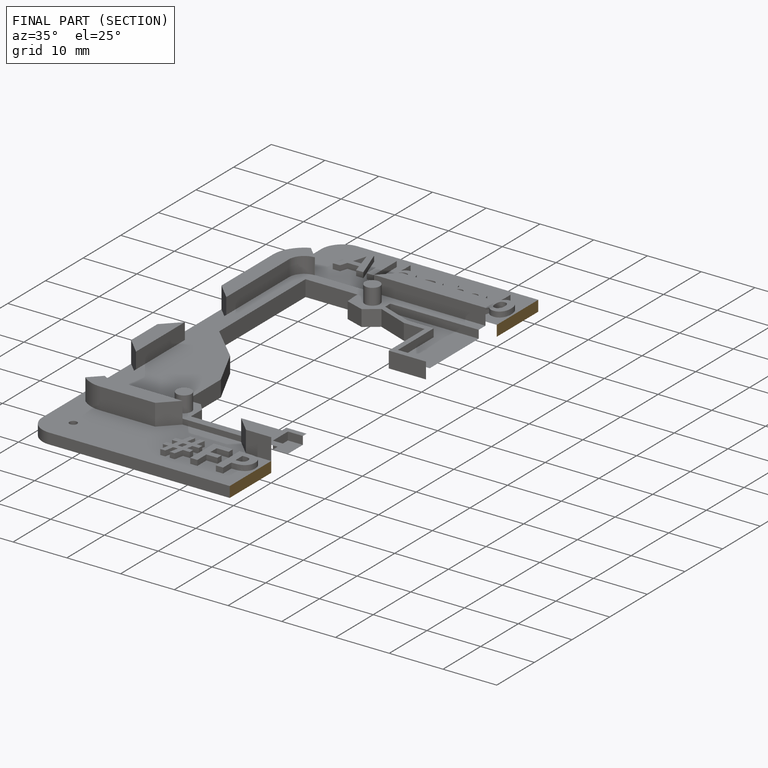
[diagram: finished part — half-section view (interior)]
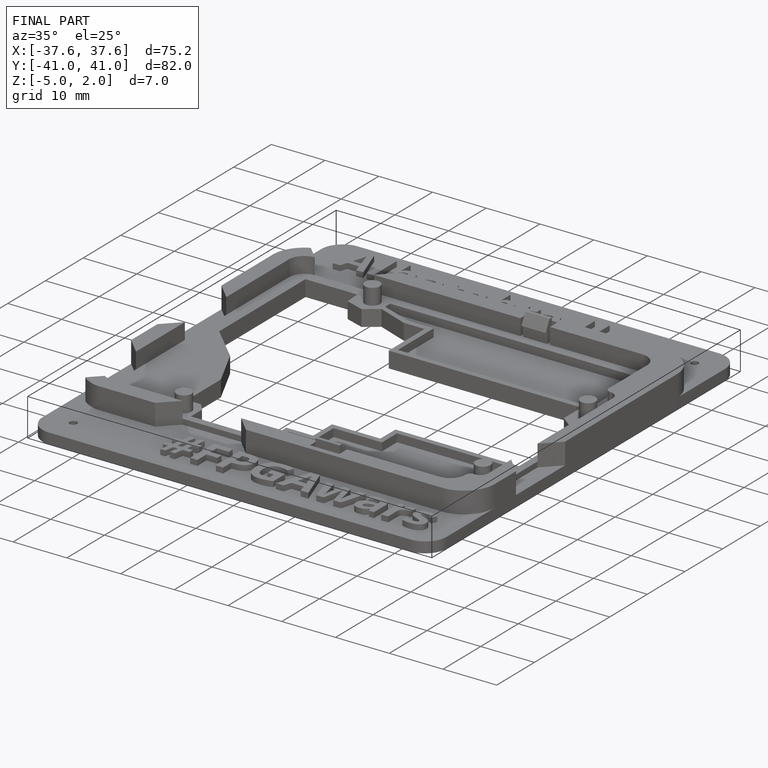
[diagram: finished part — iso view with bounding-box wireframe]
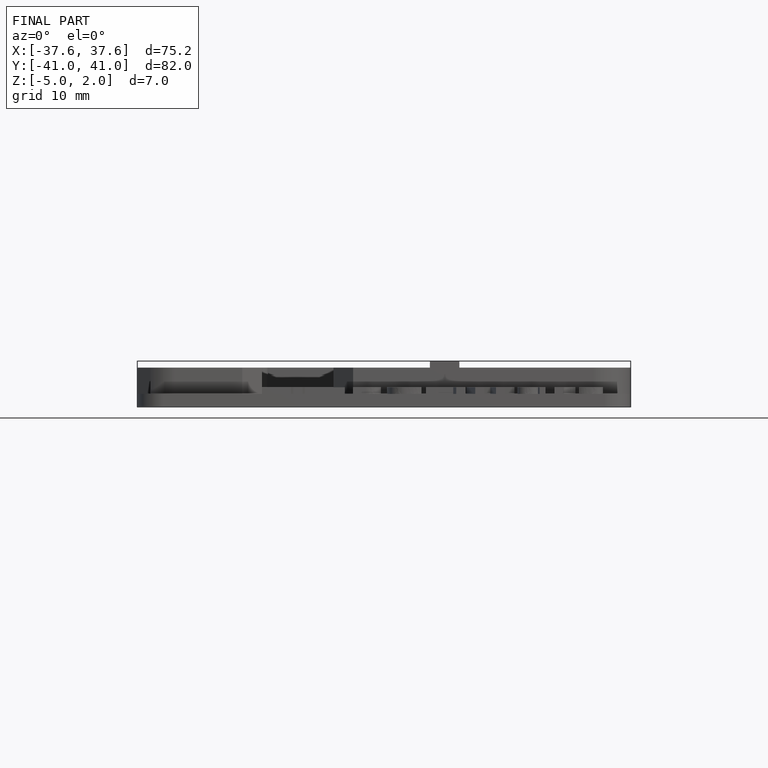
[diagram: finished part — front view with bounding-box wireframe]
